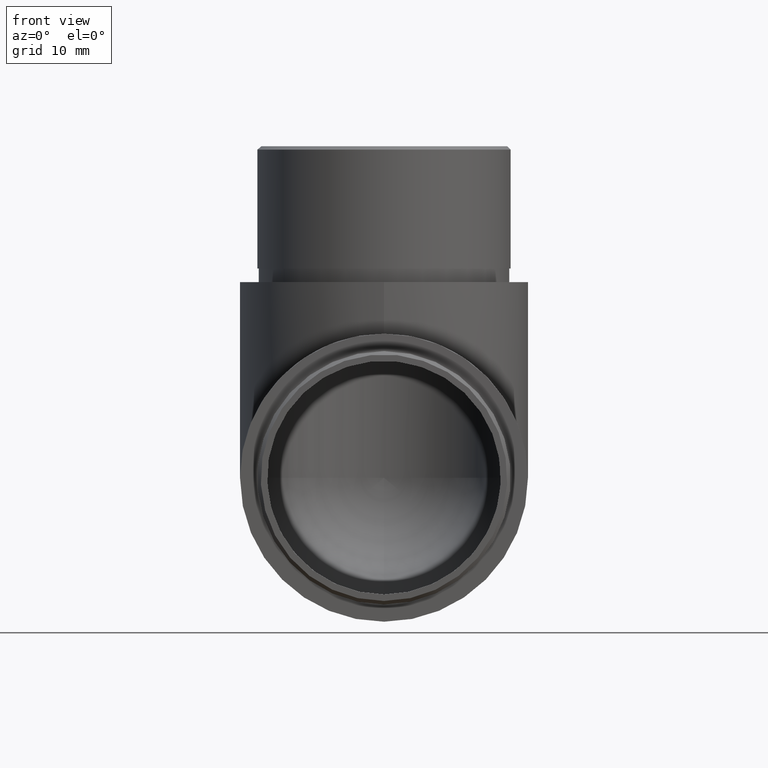
[diagram: clean part render]
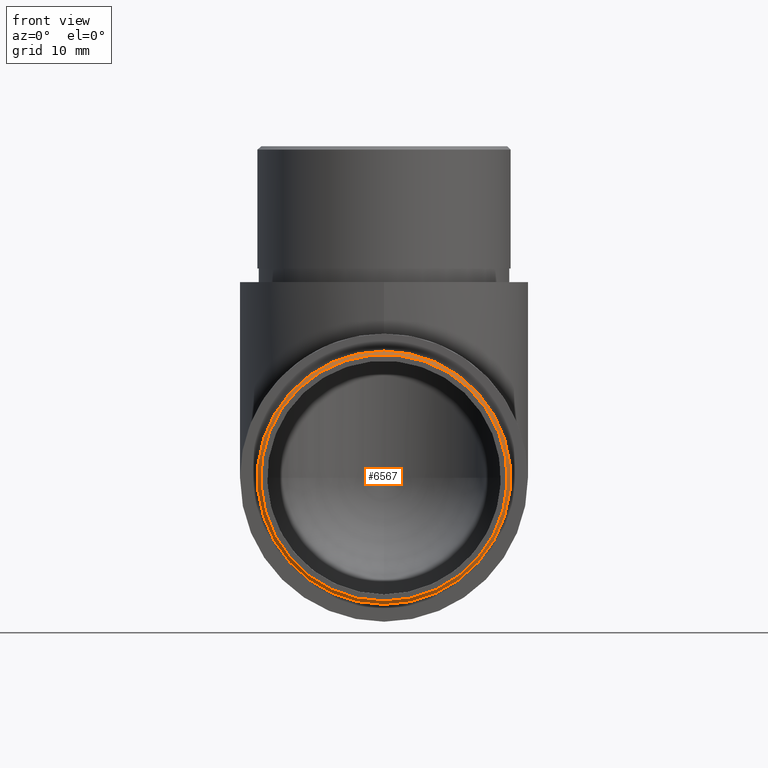
[diagram: same view with one face highlighted and labeled with its STEP entity id]
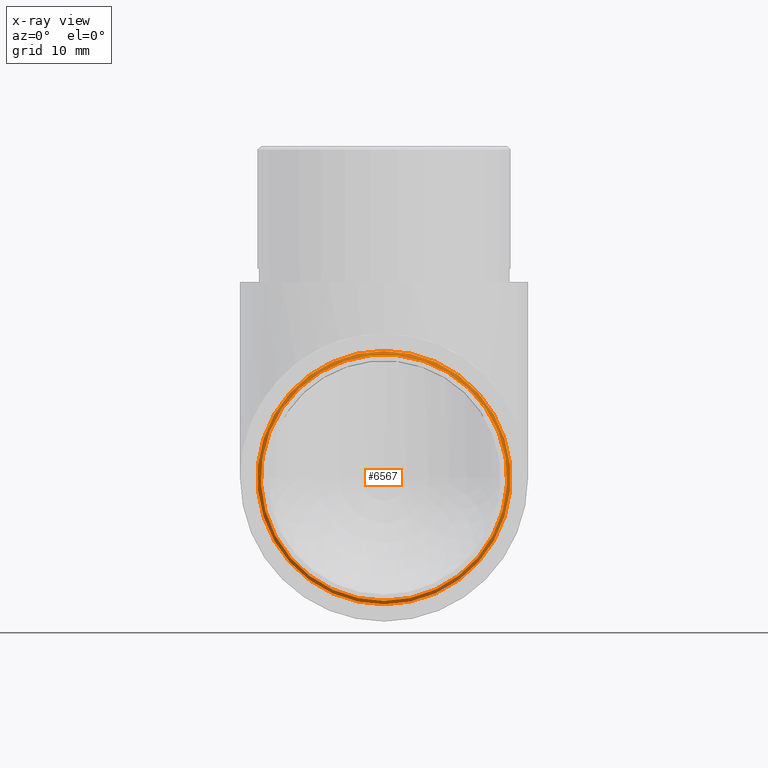
[diagram: x-ray of the same camera — body ghosted, the highlighted face saturated]
A machine part, front view. The second image highlights one B-rep face of the part: STEP entity #6567.
The next image is the same camera in x-ray: the body ghosted, the highlighted face saturated — about 0% of this face is hidden behind the body in this view.
In plain terms, the highlighted conical surface has half-angle 45 deg.
Its self-contained STEP definition (entity closure, byte-faithful):
#165 = AXIS2_PLACEMENT_3D ( 'NONE', #2306, #852, #4065 ) ;
#222 = CARTESIAN_POINT ( 'NONE',  ( 0.0000000000000000000, -19.99999999999999600, 21.20000000000000300 ) ) ;
#226 = FACE_BOUND ( 'NONE', #9120, .T. ) ;
#852 = DIRECTION ( 'NONE',  ( 0.0000000000000000000, 1.000000000000000000, 0.0000000000000000000 ) ) ;
#1073 = VERTEX_POINT ( 'NONE', #5406 ) ;
#1845 = CIRCLE ( 'NONE', #2687, 18.14999999999999900 ) ;
#2201 = DIRECTION ( 'NONE',  ( 0.0000000000000000000, 0.0000000000000000000, -1.000000000000000000 ) ) ;
#2306 = CARTESIAN_POINT ( 'NONE',  ( 0.0000000000000000000, -19.99999999999999600, 21.20000000000000300 ) ) ;
#2604 = DIRECTION ( 'NONE',  ( 0.0000000000000000000, 0.0000000000000000000, -1.000000000000000000 ) ) ;
#2687 = AXIS2_PLACEMENT_3D ( 'NONE', #222, #10778, #2201 ) ;
#4065 = DIRECTION ( 'NONE',  ( 0.0000000000000000000, 0.0000000000000000000, 1.000000000000000000 ) ) ;
#4767 = VERTEX_POINT ( 'NONE', #10141 ) ;
#4961 = CONICAL_SURFACE ( 'NONE', #165, 18.14999999999999900, 0.7853981633974587200 ) ;
#5045 = ORIENTED_EDGE ( 'NONE', *, *, #6966, .F. ) ;
#5406 = CARTESIAN_POINT ( 'NONE',  ( 0.0000000000000000000, -19.50000000000000700, 2.550000000000003800 ) ) ;
#6320 = CARTESIAN_POINT ( 'NONE',  ( 0.0000000000000000000, -19.50000000000000700, 21.20000000000000300 ) ) ;
#6567 = ADVANCED_FACE ( 'NONE', ( #10171, #226 ), #4961, .T. ) ;
#6966 = EDGE_CURVE ( 'NONE', #4767, #4767, #1845, .T. ) ;
#7459 = CIRCLE ( 'NONE', #9140, 18.64999999999999900 ) ;
#7861 = ORIENTED_EDGE ( 'NONE', *, *, #9478, .F. ) ;
#8264 = EDGE_LOOP ( 'NONE', ( #7861 ) ) ;
#9113 = DIRECTION ( 'NONE',  ( 0.0000000000000000000, 1.000000000000000000, 0.0000000000000000000 ) ) ;
#9120 = EDGE_LOOP ( 'NONE', ( #5045 ) ) ;
#9140 = AXIS2_PLACEMENT_3D ( 'NONE', #6320, #9113, #2604 ) ;
#9478 = EDGE_CURVE ( 'NONE', #1073, #1073, #7459, .T. ) ;
#10141 = CARTESIAN_POINT ( 'NONE',  ( 0.0000000000000000000, -19.99999999999999600, 3.050000000000004300 ) ) ;
#10171 = FACE_OUTER_BOUND ( 'NONE', #8264, .T. ) ;
#10778 = DIRECTION ( 'NONE',  ( 0.0000000000000000000, -1.000000000000000000, 0.0000000000000000000 ) ) ;